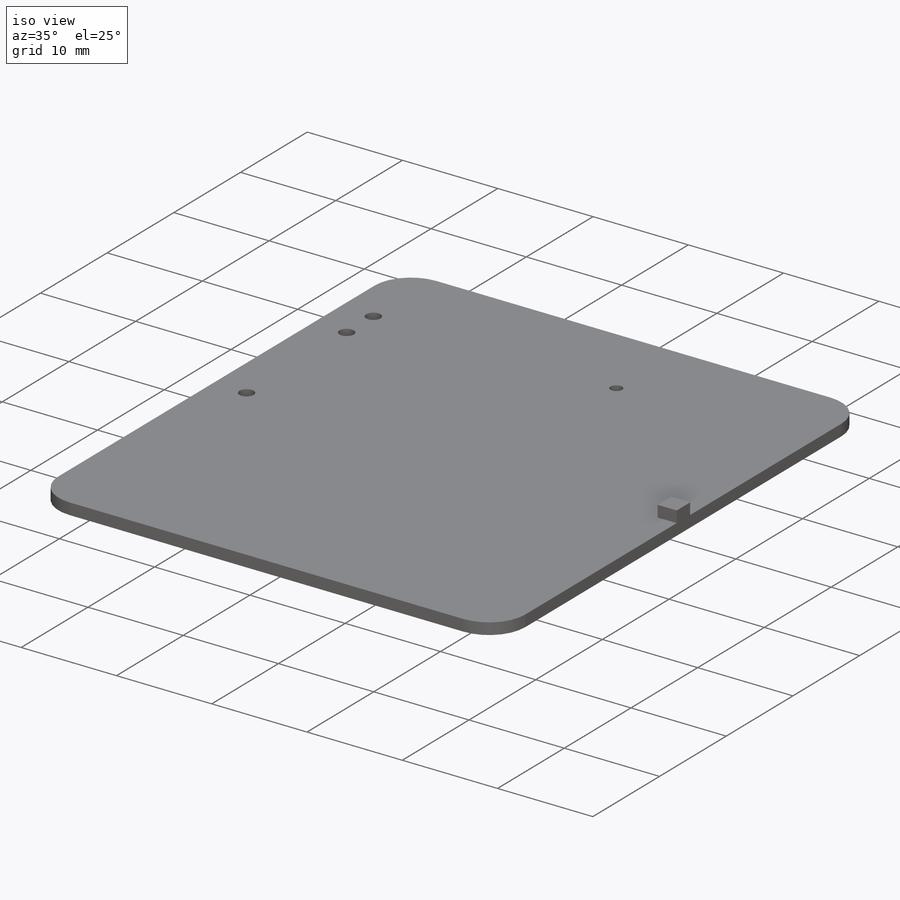
[diagram: iso view]
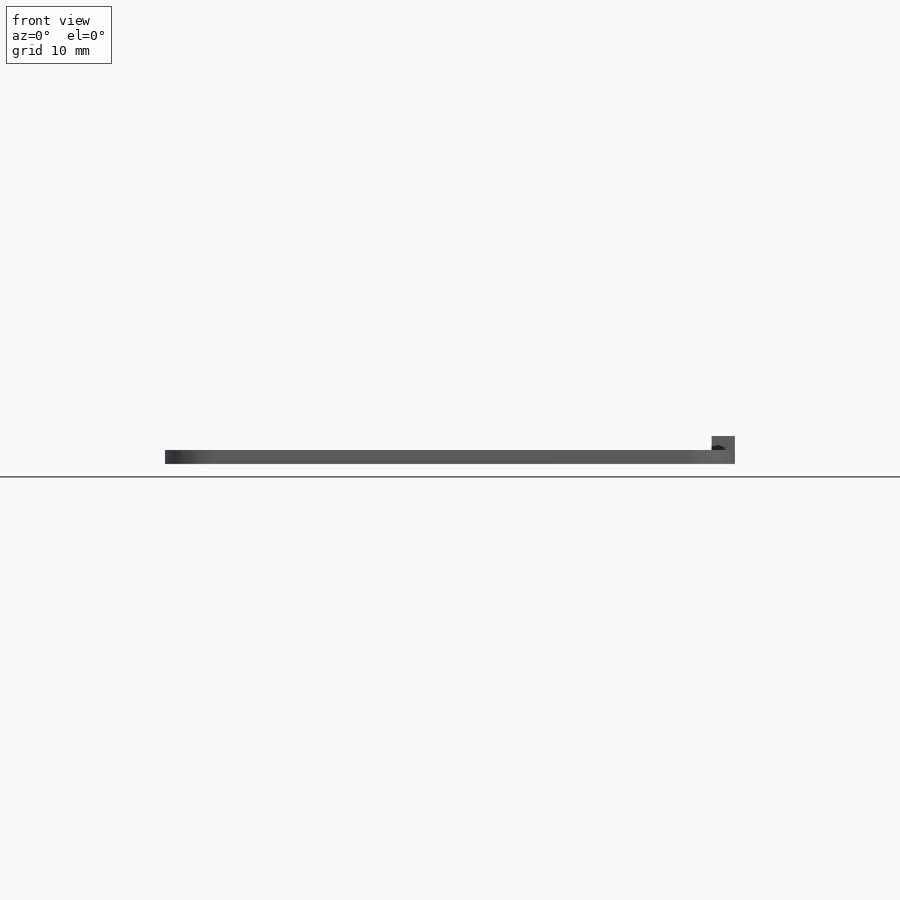
[diagram: front view]
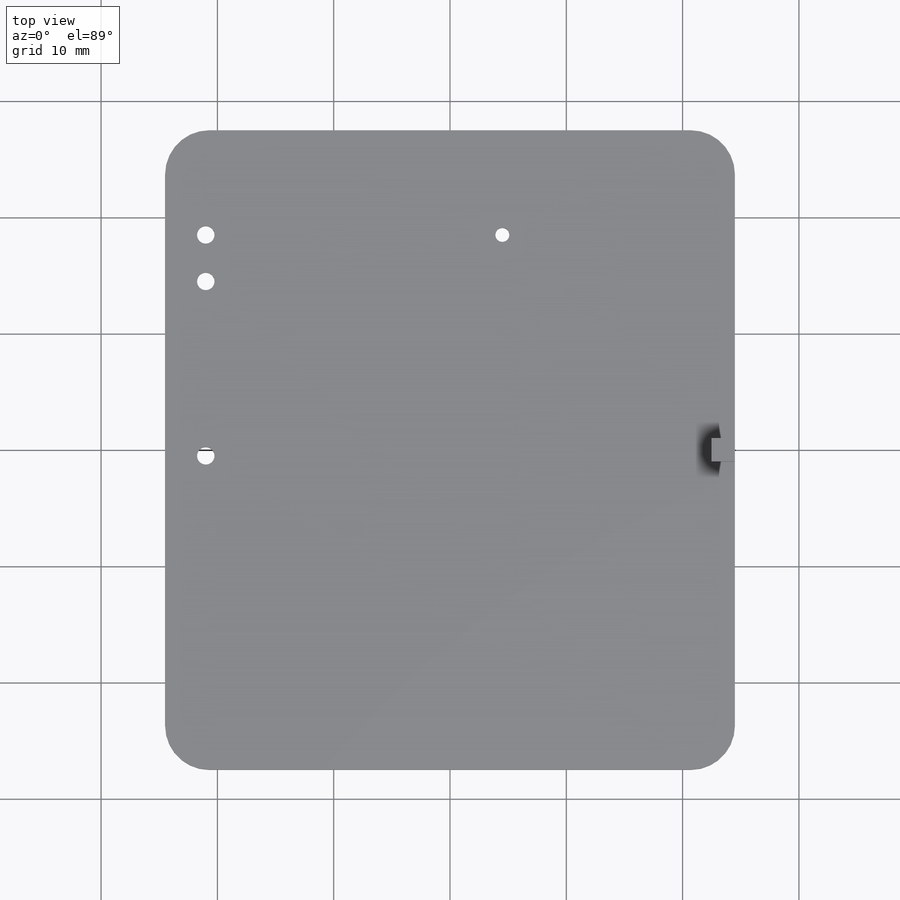
[diagram: top view]
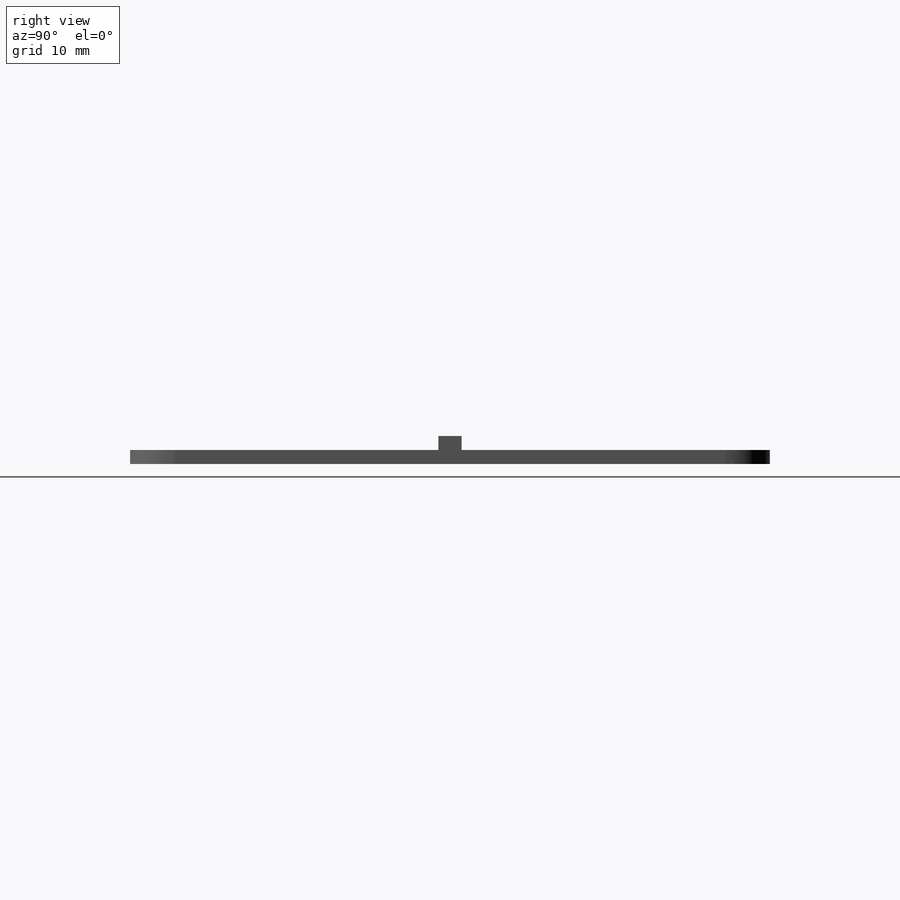
[diagram: right view]
SOLIDWORKS PART (.sldprt)
format: sldprt  version: not decoded by parser v0  size: 798,720 bytes
history: native  units: mm
features: sketch x7, cut_extrude x5, plane x3, fillet x3, extrude x2, material x1 (+10 scaffold rows collapsed)
feature tree (31):
  scaffold x10  (default folders/planes/origin — collapsed)
  material  "材质 <未指定>"
  plane  "前视"
  plane  "上视"
  plane  "右视"
  sketch  "草图1"  dims[D3=3.81mm D1=49.0mm D2=55.0mm]
  extrude  "凸台-拉伸1"  Depth=1.2mm
  sketch  "草图2"  dims[D1=1.5mm D2=1.5mm D3=1.5mm D4=4.0mm D5=15.0mm D6=9.0mm D7=3.5mm]
  cut_extrude  "切除-拉伸1"  Depth=1.2mm
  fillet  "圆角1"  Radius=0.2mm
  sketch  "草图3"  dims[D1=1.2mm D2=29.0mm D3=9.0mm]
  cut_extrude  "切除-拉伸2"  Depth=1.2mm
  fillet  "圆角2"  Radius=0.2mm
  sketch  "草图4"
  cut_extrude  "切除-拉伸3"  Depth=0.3mm
  sketch  "草图5"
  cut_extrude  "切除-拉伸4"  Depth=0.3mm
  sketch  "草图6"
  cut_extrude  "切除-拉伸6"  Depth=0.3mm
  fillet  "圆角3"  Radius=5mm
  sketch  "草图7"  dims[c1.D1=2.0mm c1.D2=1.0mm c1.D3=~1.66015mm c2.D2=2.0mm c2.D3=~0.169925mm]
  extrude  "凸台-拉伸2"  Depth=1.2mm
decode coverage: 14 of 17 modeling features carry decoded parameters
note: ~ marks probable driven/reference dimensions
note: suppression state not decoded; provenance and decode notes live in map.json
